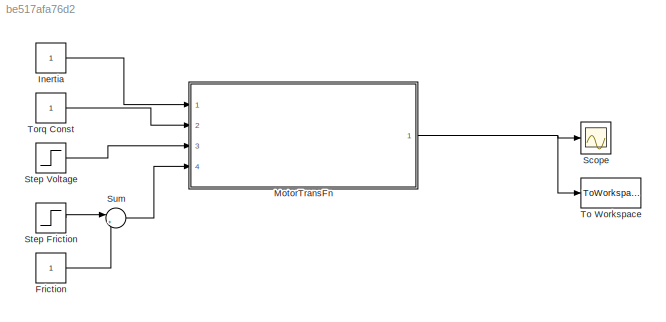
MODEL slx_be517afa76d2
KIND model
CONFIG AbsTol = auto
CONFIG EnableMultiTasking = off
CONFIG FixedStep = auto
CONFIG MaxStep = auto
CONFIG MinStep = auto
CONFIG RelTol = 1e-3
CONFIG SampleTimeConstraint = Unconstrained
CONFIG Solver = VariableStepAuto
CONFIG SolverName = VariableStepAuto
CONFIG StartTime = 0.0
CONFIG StopTime = 10
BLOCK [Constant] Friction
BLOCK [Constant] Inertia
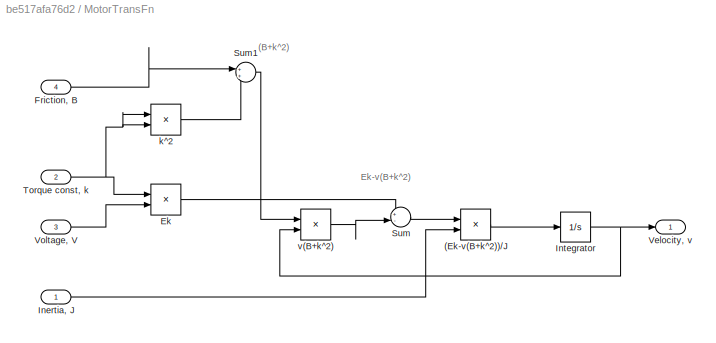
BLOCK [SubSystem] MotorTransFn
  Ports = [4, 1]
  RequestExecContextInheritance = off
  Variant = off
BLOCK [Product] MotorTransFn/(Ek-v(B+k^2))//J
  InputSameDT = off
  Inputs = */
  OutDataTypeStr = Inherit: Inherit via internal rule
  Ports = [2, 1]
  RndMeth = Floor
  SaturateOnIntegerOverflow = off
BLOCK [Product] MotorTransFn/Ek
  InputSameDT = off
  OutDataTypeStr = Inherit: Inherit via internal rule
  Ports = [2, 1]
  RndMeth = Floor
  SaturateOnIntegerOverflow = off
BLOCK [Inport] MotorTransFn/Friction, B
  IconDisplay = Port number
  Port = 4
BLOCK [Inport] MotorTransFn/Inertia, J
  IconDisplay = Port number
BLOCK [Integrator] MotorTransFn/Integrator
  Ports = [1, 1]
BLOCK [Sum] MotorTransFn/Sum
  IconShape = round
  InputSameDT = off
  Inputs = +-
  OutDataTypeStr = Inherit: Inherit via internal rule
  Ports = [2, 1]
  SaturateOnIntegerOverflow = off
BLOCK [Sum] MotorTransFn/Sum1
  IconShape = round
  InputSameDT = off
  OutDataTypeStr = Inherit: Inherit via internal rule
  Ports = [2, 1]
  SaturateOnIntegerOverflow = off
BLOCK [Inport] MotorTransFn/Torque const, k
  IconDisplay = Port number
  Port = 2
BLOCK [Outport] MotorTransFn/Velocity, v
  IconDisplay = Port number
BLOCK [Inport] MotorTransFn/Voltage, V
  IconDisplay = Port number
  Port = 3
BLOCK [Product] MotorTransFn/k^2
  InputSameDT = off
  OutDataTypeStr = Inherit: Inherit via internal rule
  Ports = [2, 1]
  RndMeth = Floor
  SaturateOnIntegerOverflow = off
BLOCK [Product] MotorTransFn/v(B+k^2)
  InputSameDT = off
  OutDataTypeStr = Inherit: Inherit via internal rule
  Ports = [2, 1]
  RndMeth = Floor
  SaturateOnIntegerOverflow = off
BLOCK [Scope] Scope
  NumInputPorts = 1
  Ports = [1]
  ScopeSpecificationString = Simulink.scopes.TimeScopeBlockCfg('CurrentConfiguration', extmgr.ConfigurationSet(extmgr.Configuration('Core','General UI',true),extmgr.Configuration('Core','Source UI',true),extmgr.Configuration('Sources','WiredSimulink',true),extmgr.Configuration('Visuals','Time Domain',true,'SerializedDisplays',{struct('MinYLimReal','-0.06248','MaxYLimReal','0.56231','YLabelReal','','MinYLimMag','0.00000','MaxY...<+1362ch>
BLOCK [Step] Step Friction
  SampleTime = 0
  Time = 5
BLOCK [Step] Step Voltage
  SampleTime = 0
BLOCK [Sum] Sum
  IconShape = round
  InputSameDT = off
  Inputs = |++
  OutDataTypeStr = Inherit: Inherit via internal rule
  Ports = [2, 1]
  SaturateOnIntegerOverflow = off
BLOCK [ToWorkspace] To Workspace
  FixptAsFi = on
  MaxDataPoints = inf
  Ports = [1]
  SampleTime = -1
  Save2DSignal = 3-D array (concatenate along third dimension)
  SaveFormat = Timeseries
  VariableName = motorVelocity
BLOCK [Constant] Torq Const
ANNOTATION MotorTransFn: (B+k^2)
ANNOTATION MotorTransFn: Ek-v(B+k^2)
LINE Friction:1 -> Sum:2
LINE Inertia:1 -> MotorTransFn:1
LINE MotorTransFn/(Ek-v(B+k^2))//J:1 -> MotorTransFn/Integrator:1
LINE MotorTransFn/Ek:1 -> MotorTransFn/Sum:1
LINE MotorTransFn/Friction, B:1 -> MotorTransFn/Sum1:1
LINE MotorTransFn/Inertia, J:1 -> MotorTransFn/(Ek-v(B+k^2))//J:2
NET MotorTransFn/Integrator:1 -> MotorTransFn/Velocity, v:1, MotorTransFn/v(B+k^2):2
LINE MotorTransFn/Sum1:1 -> MotorTransFn/v(B+k^2):1
LINE MotorTransFn/Sum:1 -> MotorTransFn/(Ek-v(B+k^2))//J:1
NET MotorTransFn/Torque const, k:1 -> MotorTransFn/Ek:1, MotorTransFn/k^2:1, MotorTransFn/k^2:2
LINE MotorTransFn/Voltage, V:1 -> MotorTransFn/Ek:2
LINE MotorTransFn/k^2:1 -> MotorTransFn/Sum1:2
LINE MotorTransFn/v(B+k^2):1 -> MotorTransFn/Sum:2
NET MotorTransFn:1 -> Scope:1, To Workspace:1
LINE Step Friction:1 -> Sum:1
LINE Step Voltage:1 -> MotorTransFn:3
LINE Sum:1 -> MotorTransFn:4
LINE Torq Const:1 -> MotorTransFn:2
note: NET lines group one-source signal fan-out (src -> all destinations, sorted); 1:1 wires keep LINE
